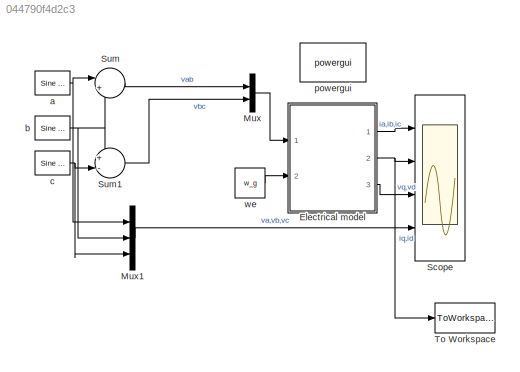
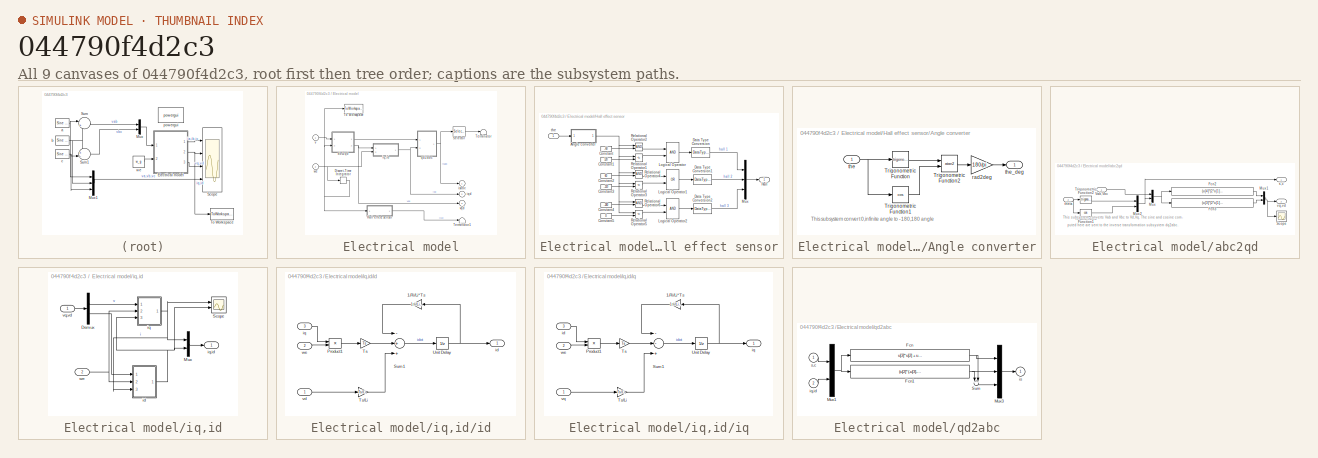
[diagram: thumbnail index - all 9 canvases of the model, root first then tree order]
MODEL slx_044790f4d2c3
KIND model
CONFIG AbsTol = auto
CONFIG FixedStep = Ts
CONFIG MaxStep = auto
CONFIG MinStep = auto
CONFIG RelTol = 1e-3
CONFIG SampleTimeConstraint = Unconstrained
CONFIG Solver = FixedStepAuto
CONFIG SolverMode = Auto
CONFIG SolverName = FixedStepAuto
CONFIG StartTime = 0.0
CONFIG StopTime = 3
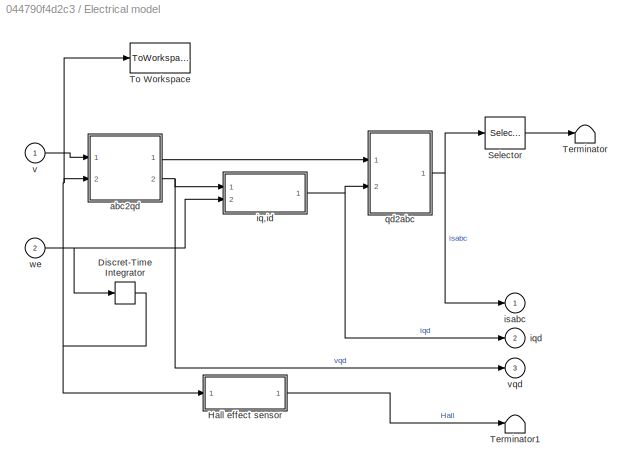
BLOCK [SubSystem] Electrical model
  AncestorBlock = spsPMSynchronousMachineModel/Continuous
  Ports = [2, 3]
  RequestExecContextInheritance = off
  Variant = off
BLOCK [DiscreteIntegrator] Electrical model/Discret-Time Integrator
  ICPrevOutput = DiscIntNeverNeededParam
  ICPrevScaledInput = DiscIntNeverNeededParam
  InitialConditionSetting = State (most efficient)
  IntegratorMethod = Integration: Backward Euler
  Ports = [1, 1]
  SampleTime = Ts
  gainval = 1
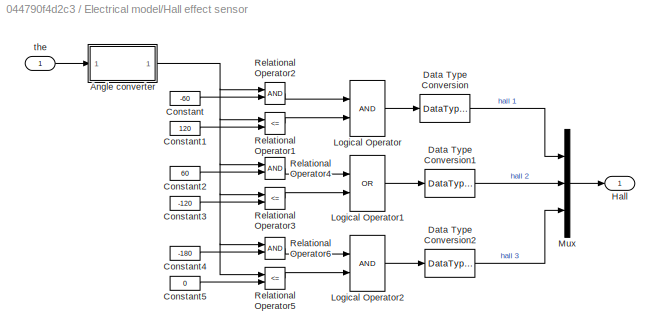
BLOCK [SubSystem] Electrical model/Hall effect sensor
  Ports = [1, 1]
  RequestExecContextInheritance = off
  Variant = off
BLOCK [SubSystem] Electrical model/Hall effect sensor/Angle converter
  Ports = [1, 1]
  RequestExecContextInheritance = off
  Variant = off
BLOCK [Trigonometry] Electrical model/Hall effect sensor/Angle converter/Trigonometric Function
  Ports = [1, 1]
BLOCK [Trigonometry] Electrical model/Hall effect sensor/Angle converter/Trigonometric Function1
  Operator = cos
  Ports = [1, 1]
BLOCK [Trigonometry] Electrical model/Hall effect sensor/Angle converter/Trigonometric Function2
  Operator = atan2
  Ports = [2, 1]
BLOCK [Gain] Electrical model/Hall effect sensor/Angle converter/rad2deg
  Gain = 180/pi
BLOCK [Inport] Electrical model/Hall effect sensor/Angle converter/the
  IconDisplay = Port number
BLOCK [Outport] Electrical model/Hall effect sensor/Angle converter/the_deg
  IconDisplay = Port number
BLOCK [Constant] Electrical model/Hall effect sensor/Constant
  Value = -60
BLOCK [Constant] Electrical model/Hall effect sensor/Constant1
  Value = 120
BLOCK [Constant] Electrical model/Hall effect sensor/Constant2
  Value = 60
BLOCK [Constant] Electrical model/Hall effect sensor/Constant3
  Value = -120
BLOCK [Constant] Electrical model/Hall effect sensor/Constant4
  Value = -180
BLOCK [Constant] Electrical model/Hall effect sensor/Constant5
  Value = 0
BLOCK [DataTypeConversion] Electrical model/Hall effect sensor/Data Type Conversion
  OutDataTypeStr = double
BLOCK [DataTypeConversion] Electrical model/Hall effect sensor/Data Type Conversion1
  OutDataTypeStr = double
BLOCK [DataTypeConversion] Electrical model/Hall effect sensor/Data Type Conversion2
  OutDataTypeStr = double
BLOCK [Outport] Electrical model/Hall effect sensor/Hall
  IconDisplay = Port number
BLOCK [Logic] Electrical model/Hall effect sensor/Logical Operator
  AllPortsSameDT = off
  OutDataTypeStr = boolean
  Ports = [2, 1]
BLOCK [Logic] Electrical model/Hall effect sensor/Logical Operator1
  AllPortsSameDT = off
  Operator = OR
  OutDataTypeStr = boolean
  Ports = [2, 1]
BLOCK [Logic] Electrical model/Hall effect sensor/Logical Operator2
  AllPortsSameDT = off
  OutDataTypeStr = boolean
  Ports = [2, 1]
BLOCK [Mux] Electrical model/Hall effect sensor/Mux
  DisplayOption = bar
  Inputs = 3
  Ports = [3, 1]
BLOCK [RelationalOperator] Electrical model/Hall effect sensor/Relational Operator1
  Operator = <=
  Ports = [2, 1]
BLOCK [RelationalOperator] Electrical model/Hall effect sensor/Relational Operator2
  Ports = [2, 1]
BLOCK [RelationalOperator] Electrical model/Hall effect sensor/Relational Operator3
  Operator = <=
  Ports = [2, 1]
BLOCK [RelationalOperator] Electrical model/Hall effect sensor/Relational Operator4
  Ports = [2, 1]
BLOCK [RelationalOperator] Electrical model/Hall effect sensor/Relational Operator5
  Operator = <=
  Ports = [2, 1]
BLOCK [RelationalOperator] Electrical model/Hall effect sensor/Relational Operator6
  Ports = [2, 1]
BLOCK [Inport] Electrical model/Hall effect sensor/the
  IconDisplay = Port number
BLOCK [Selector] Electrical model/Selector
  IndexOptions = Index vector (dialog)
  Indices = 1:2
  InputPortWidth = 3
  OutputSizes = 1
  Ports = [1, 1]
BLOCK [Terminator] Electrical model/Terminator
BLOCK [Terminator] Electrical model/Terminator1
BLOCK [ToWorkspace] Electrical model/To Workspace
  FixptAsFi = on
  MaxDataPoints = inf
  Ports = [1]
  SampleTime = -1
  Save2DSignal = 2-D array (concatenate along first dimension)
  VariableName = theta
BLOCK [SubSystem] Electrical model/abc2qd
  Ports = [2, 2]
  RequestExecContextInheritance = off
  Variant = off
BLOCK [Fcn] Electrical model/abc2qd/Fcn2
  Expr = (u[4]*(2*u[1]+u[2]) + (sqrt(3)*u[2]*u[3])) * 1/3
BLOCK [Fcn] Electrical model/abc2qd/Fcn3
  Expr = (u[3]*(2*u[1]+u[2]) + (-sqrt(3)*u[2]*u[4])) * 1/3
BLOCK [Mux] Electrical model/abc2qd/Mux
  DisplayOption = bar
  Inputs = 2
  Ports = [2, 1]
BLOCK [Mux] Electrical model/abc2qd/Mux1
  DisplayOption = bar
  Inputs = 2
  Ports = [2, 1]
BLOCK [Mux] Electrical model/abc2qd/Mux2
  DisplayOption = bar
  Inputs = 2
  Ports = [2, 1]
BLOCK [Scope] Electrical model/abc2qd/Scope
  Ports = [1]
  ScopeSpecificationString = Simulink.scopes.TimeScopeBlockCfg('CurrentConfiguration', extmgr.ConfigurationSet(extmgr.Configuration('Core','General UI',true),extmgr.Configuration('Core','Source UI',true),extmgr.Configuration('Sources','WiredSimulink',true,'DataLoggingVariableName','ScopeData2'),extmgr.Configuration('Visuals','Time Domain',true,'SerializedDisplays',{struct('MinYLimReal','-250.00000','MaxYLimReal','250.00000','...<+1454ch>
BLOCK [Trigonometry] Electrical model/abc2qd/Trigonometric Function1
  Operator = cos
  Ports = [1, 1]
  SampleTime = Ts
BLOCK [Trigonometry] Electrical model/abc2qd/Trigonometric Function2
  Ports = [1, 1]
  SampleTime = Ts
BLOCK [Inport] Electrical model/abc2qd/Vab,Vbc
  IconDisplay = Port number
BLOCK [Outport] Electrical model/abc2qd/s,c
  IconDisplay = Port number
  InitialOutput = 0
BLOCK [Inport] Electrical model/abc2qd/theta
  IconDisplay = Port number
  Port = 2
BLOCK [Outport] Electrical model/abc2qd/vq,vd
  IconDisplay = Port number
  InitialOutput = 0
  Port = 2
BLOCK [SubSystem] Electrical model/iq,id
  Ports = [2, 1]
  RequestExecContextInheritance = off
  Variant = off
BLOCK [Demux] Electrical model/iq,id/Demux
  DisplayOption = bar
  Outputs = 2
  Ports = [1, 2]
BLOCK [Mux] Electrical model/iq,id/Mux
  DisplayOption = bar
  Inputs = 2
  Ports = [2, 1]
BLOCK [Scope] Electrical model/iq,id/Scope
  NumInputPorts = 2
  Ports = [2]
  ScopeSpecificationString = Simulink.scopes.TimeScopeBlockCfg('CurrentConfiguration', extmgr.ConfigurationSet(extmgr.Configuration('Core','General UI',true),extmgr.Configuration('Core','Source UI',true),extmgr.Configuration('Sources','WiredSimulink',true,'DataLoggingVariableName','ScopeData1'),extmgr.Configuration('Visuals','Time Domain',true,'SerializedDisplays',{struct('MinYLimReal','-15894686752611658000000000000000000000...<+3160ch>
BLOCK [SubSystem] Electrical model/iq,id/id
  Ports = [3, 1]
  RequestExecContextInheritance = off
  Variant = off
BLOCK [Gain] Electrical model/iq,id/id/1-Ri//Li*Ts
  Gain = 1-ri/Li*Ts
BLOCK [Product] Electrical model/iq,id/id/Product1
  Ports = [2, 1]
  RndMeth = Floor
BLOCK [Sum] Electrical model/iq,id/id/Sum1
  Inputs = -++
  Ports = [3, 1]
BLOCK [Gain] Electrical model/iq,id/id/Ts
  Gain = Ts
BLOCK [Gain] Electrical model/iq,id/id/Ts//Li
  Gain = Ts/Li
BLOCK [UnitDelay] Electrical model/iq,id/id/Unit Delay
  InputProcessing = Elements as channels (sample based)
  SampleTime = -1
BLOCK [Outport] Electrical model/iq,id/id/id
  IconDisplay = Port number
  InitialOutput = 0
BLOCK [Inport] Electrical model/iq,id/id/iq
  IconDisplay = Port number
  Port = 3
BLOCK [Inport] Electrical model/iq,id/id/vd
  IconDisplay = Port number
BLOCK [Inport] Electrical model/iq,id/id/we
  IconDisplay = Port number
  Port = 2
BLOCK [SubSystem] Electrical model/iq,id/iq
  Ports = [3, 1]
  RequestExecContextInheritance = off
  Variant = off
BLOCK [Outport] Electrical model/iq,id/iq,id
  IconDisplay = Port number
  InitialOutput = 0
BLOCK [Gain] Electrical model/iq,id/iq/1-Ri//Li*Ts
  Gain = 1-ri/Li*Ts
BLOCK [Product] Electrical model/iq,id/iq/Product1
  Ports = [2, 1]
  RndMeth = Floor
BLOCK [Sum] Electrical model/iq,id/iq/Sum1
  Inputs = --+
  Ports = [3, 1]
BLOCK [Gain] Electrical model/iq,id/iq/Ts
  Gain = Ts
BLOCK [Gain] Electrical model/iq,id/iq/Ts//Li
  Gain = Ts/Li
BLOCK [UnitDelay] Electrical model/iq,id/iq/Unit Delay
  InputProcessing = Elements as channels (sample based)
  SampleTime = -1
BLOCK [Inport] Electrical model/iq,id/iq/id
  IconDisplay = Port number
  Port = 3
BLOCK [Outport] Electrical model/iq,id/iq/iq
  IconDisplay = Port number
  InitialOutput = 0
BLOCK [Inport] Electrical model/iq,id/iq/vq
  IconDisplay = Port number
BLOCK [Inport] Electrical model/iq,id/iq/we
  IconDisplay = Port number
  Port = 2
BLOCK [Inport] Electrical model/iq,id/vq,vd
  IconDisplay = Port number
BLOCK [Inport] Electrical model/iq,id/we
  IconDisplay = Port number
  Port = 2
BLOCK [Outport] Electrical model/iqd
  IconDisplay = Port number
  InitialOutput = 0
  Port = 2
BLOCK [Outport] Electrical model/isabc
  IconDisplay = Port number
  InitialOutput = 0
BLOCK [SubSystem] Electrical model/qd2abc
  Ports = [2, 1]
  RequestExecContextInheritance = off
  Variant = off
BLOCK [Fcn] Electrical model/qd2abc/Fcn
  Expr = u[3]*u[2] + u[4]*u[1]
BLOCK [Fcn] Electrical model/qd2abc/Fcn1
  Expr = (u[2]*(-u[3]-sqrt(3)*u[4]) + u[1]*(sqrt(3)*u[3]-u[4]))*0.5
BLOCK [Mux] Electrical model/qd2abc/Mux1
  DisplayOption = bar
  Inputs = 2
  Ports = [2, 1]
BLOCK [Mux] Electrical model/qd2abc/Mux3
  DisplayOption = bar
  Inputs = 3
  Ports = [3, 1]
BLOCK [Sum] Electrical model/qd2abc/Sum
  Inputs = --
  Ports = [2, 1]
BLOCK [Inport] Electrical model/qd2abc/iq,id
  IconDisplay = Port number
  Port = 2
BLOCK [Outport] Electrical model/qd2abc/is
  IconDisplay = Port number
  InitialOutput = 0
BLOCK [Inport] Electrical model/qd2abc/s,c
  IconDisplay = Port number
BLOCK [Inport] Electrical model/v
  IconDisplay = Port number
BLOCK [Outport] Electrical model/vqd
  IconDisplay = Port number
  InitialOutput = 0
  Port = 3
BLOCK [Inport] Electrical model/we
  IconDisplay = Port number
  Port = 2
BLOCK [Mux] Mux
  DisplayOption = bar
  Inputs = 2
  Ports = [2, 1]
BLOCK [Mux] Mux1
  DisplayOption = bar
  Inputs = 3
  Ports = [3, 1]
BLOCK [Scope] Scope
  NumInputPorts = 4
  Ports = [4]
  ScopeSpecificationString = Simulink.scopes.TimeScopeBlockCfg('CurrentConfiguration', extmgr.ConfigurationSet(extmgr.Configuration('Core','General UI',true),extmgr.Configuration('Core','Source UI',true),extmgr.Configuration('Sources','WiredSimulink',true),extmgr.Configuration('Visuals','Time Domain',true,'SerializedDisplays',{struct('MinYLimReal','-82.88185','MaxYLimReal','85.34943','YLabelReal','','MinYLimMag','0.00000','Ma...<+3523ch>
BLOCK [Sum] Sum
  IconShape = round
  InputSameDT = off
  Inputs = |+-
  OutDataTypeStr = Inherit: Inherit via internal rule
  Ports = [2, 1]
  SaturateOnIntegerOverflow = off
BLOCK [Sum] Sum1
  IconShape = round
  InputSameDT = off
  Inputs = +-|
  OutDataTypeStr = Inherit: Inherit via internal rule
  Ports = [2, 1]
  SaturateOnIntegerOverflow = off
BLOCK [ToWorkspace] To Workspace
  FixptAsFi = on
  MaxDataPoints = inf
  Ports = [1]
  SampleTime = -1
  Save2DSignal = 3-D array (concatenate along third dimension)
  VariableName = current
BLOCK [Reference] a  REF=dspsrcs4/Sine Wave
  Ports = [0, 1]
  SourceBlock = dspsrcs4/Sine Wave
  SourceType = Sine Wave
BLOCK [Reference] b  REF=dspsrcs4/Sine Wave
  Ports = [0, 1]
  SourceBlock = dspsrcs4/Sine Wave
  SourceType = Sine Wave
BLOCK [Reference] c  REF=dspsrcs4/Sine Wave
  Ports = [0, 1]
  SourceBlock = dspsrcs4/Sine Wave
  SourceType = Sine Wave
BLOCK [Reference] powergui  REF=powerlib/powergui
  Ports = []
  Priority = 1
  SourceBlock = powerlib/powergui
  SourceType = PSB option menu block
  UserDataPersistent = on
BLOCK [Constant] we
  Value = w_g
ANNOTATION Electrical model/Hall effect sensor/Angle converter: This subsystem convert 0,infinite angle to -180,180 angle
ANNOTATION Electrical model/abc2qd: This subsystem converts Vab and Vbc to Vd,Vq. The sine and cosine com- puted here are sent to the inverse transformation subsystem dq2abc.
LINE Electrical model:1 -> Scope:1
NET Electrical model:2 -> Scope:2, To Workspace:1
LINE Electrical model:3 -> Scope:3
LINE Mux1:1 -> Scope:4
LINE Mux:1 -> Electrical model:1
LINE Sum1:1 -> Mux:2
LINE Sum:1 -> Mux:1
NET a:1 -> Mux1:1, Sum:1
NET b:1 -> Mux1:2, Sum1:1, Sum:2
NET c:1 -> Mux1:3, Sum1:2
LINE we:1 -> Electrical model:2
note: NET lines group one-source signal fan-out (src -> all destinations, sorted); 1:1 wires keep LINE
